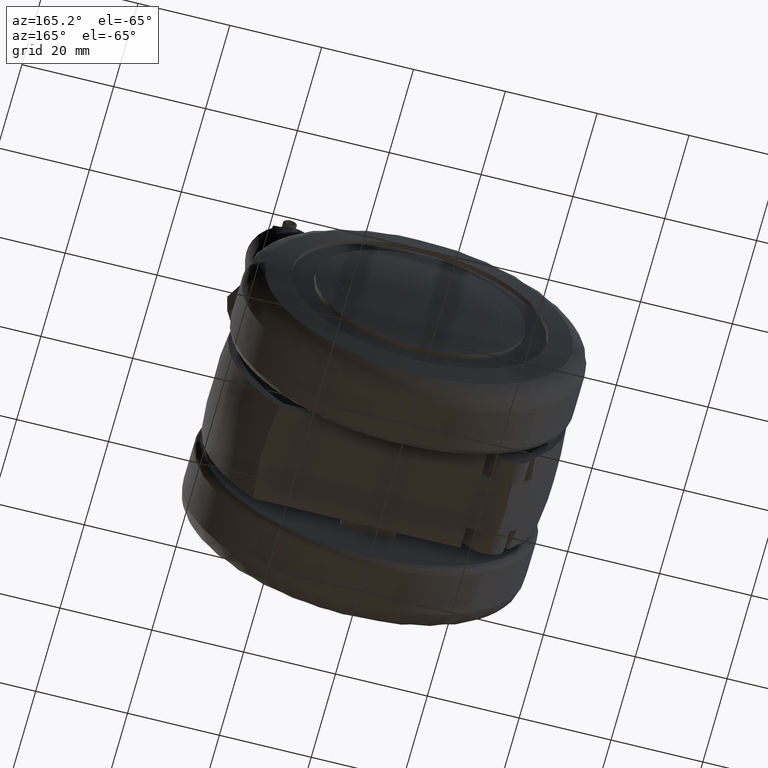
[diagram: clean part render]
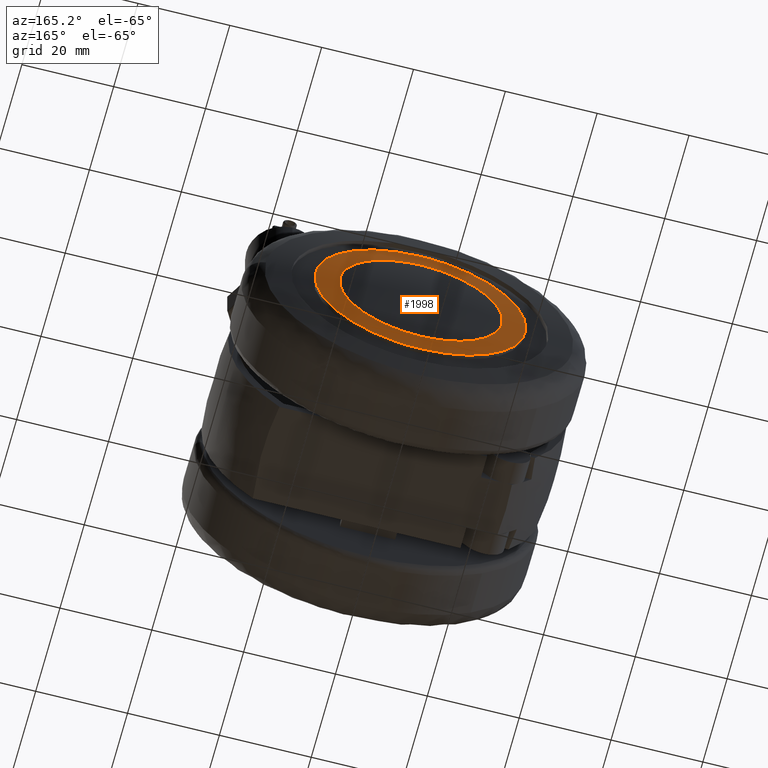
[diagram: same view with one face highlighted and labeled with its STEP entity id]
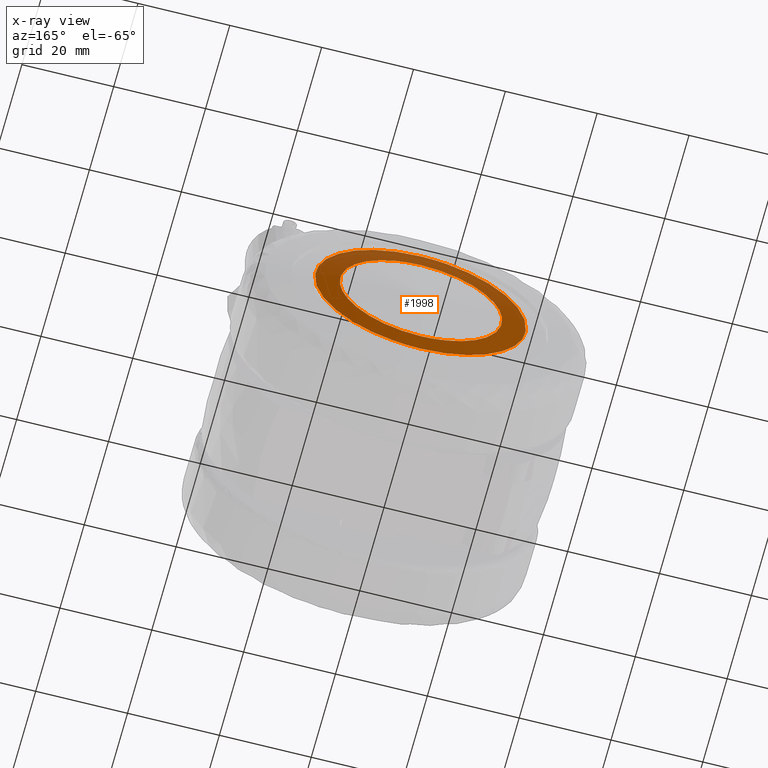
[diagram: x-ray of the same camera — body ghosted, the highlighted face saturated]
A machine part, auxiliary view. The second image highlights one B-rep face of the part: STEP entity #1998.
The next image is the same camera in x-ray: the body ghosted, the highlighted face saturated — about 0% of this face is hidden behind the body in this view.
In plain terms, the highlighted face is a freeform B-spline surface patch.
Its self-contained STEP definition (entity closure, byte-faithful):
#79=CARTESIAN_POINT('',(-17.645437166778319,30.500000387833399,1.388721423921065));
#80=VERTEX_POINT('',#79);
#86=CARTESIAN_POINT('',(0.0,30.500000387833399,17.700000000000010));
#87=VERTEX_POINT('',#86);
#88=CARTESIAN_POINT('',(0.0,30.500000387833399,17.700000000000010));
#89=CARTESIAN_POINT('',(-16.361715953410926,30.500000387833392,17.700000000000010));
#90=CARTESIAN_POINT('',(-17.645437166778315,30.500000387833389,1.388721423921064));
#98=(BOUNDED_CURVE()B_SPLINE_CURVE(2,(#88,#89,#90),.UNSPECIFIED.,.F.,.U.)B_SPLINE_CURVE_WITH_KNOTS((3,3),(0.0,0.236331345034564),.UNSPECIFIED.)CURVE()GEOMETRIC_REPRESENTATION_ITEM()RATIONAL_B_SPLINE_CURVE((1.0,0.723120606585256,0.969723448834997))REPRESENTATION_ITEM(''));
#99=EDGE_CURVE('',#87,#80,#98,.T.);
#101=CARTESIAN_POINT('',(17.645437166778319,30.500000387833399,-1.388721423921044));
#102=VERTEX_POINT('',#101);
#103=CARTESIAN_POINT('',(17.645437166778311,30.500000387833399,-1.388721423921044));
#104=CARTESIAN_POINT('',(17.699999999999999,30.500000387833399,-0.695432598199861));
#105=CARTESIAN_POINT('',(17.699999999999999,30.500000387833399,1.120515E-014));
#106=CARTESIAN_POINT('',(17.699999999999999,30.500000387833396,17.700000000000014));
#107=CARTESIAN_POINT('',(0.0,30.500000387833399,17.700000000000010));
#115=(BOUNDED_CURVE()B_SPLINE_CURVE(2,(#103,#104,#105,#106,#107),.UNSPECIFIED.,.F.,.U.)B_SPLINE_CURVE_WITH_KNOTS((3,2,3),(0.736331345034564,0.750000000000000,1.0),.UNSPECIFIED.)CURVE()GEOMETRIC_REPRESENTATION_ITEM()RATIONAL_B_SPLINE_CURVE((0.969723448834997,0.983986174601292,1.0,0.707106781186547,1.0))REPRESENTATION_ITEM(''));
#116=EDGE_CURVE('',#102,#87,#115,.T.);
#192=CARTESIAN_POINT('',(0.0,30.500000387833399,-17.699999999999989));
#193=VERTEX_POINT('',#192);
#194=CARTESIAN_POINT('',(0.0,30.500000387833399,-17.699999999999989));
#195=CARTESIAN_POINT('',(16.361715953410926,30.500000387833396,-17.699999999999999));
#196=CARTESIAN_POINT('',(17.645437166778311,30.500000387833399,-1.388721423921044));
#204=(BOUNDED_CURVE()B_SPLINE_CURVE(2,(#194,#195,#196),.UNSPECIFIED.,.F.,.U.)B_SPLINE_CURVE_WITH_KNOTS((3,3),(0.500000000000000,0.736331345034564),.UNSPECIFIED.)CURVE()GEOMETRIC_REPRESENTATION_ITEM()RATIONAL_B_SPLINE_CURVE((1.0,0.723120606585255,0.969723448834997))REPRESENTATION_ITEM(''));
#205=EDGE_CURVE('',#193,#102,#204,.T.);
#207=CARTESIAN_POINT('',(-17.645437166778315,30.500000387833389,1.388721423921064));
#208=CARTESIAN_POINT('',(-17.700000000000003,30.500000387833403,0.695432598199887));
#209=CARTESIAN_POINT('',(-17.699999999999999,30.500000387833399,1.120515E-014));
#210=CARTESIAN_POINT('',(-17.699999999999999,30.500000387833396,-17.699999999999985));
#211=CARTESIAN_POINT('',(0.0,30.500000387833399,-17.699999999999989));
#219=(BOUNDED_CURVE()B_SPLINE_CURVE(2,(#207,#208,#209,#210,#211),.UNSPECIFIED.,.F.,.U.)B_SPLINE_CURVE_WITH_KNOTS((3,2,3),(0.236331345034564,0.250000000000000,0.500000000000000),.UNSPECIFIED.)CURVE()GEOMETRIC_REPRESENTATION_ITEM()RATIONAL_B_SPLINE_CURVE((0.969723448834997,0.983986174601292,1.0,0.707106781186547,1.0))REPRESENTATION_ITEM(''));
#220=EDGE_CURVE('',#80,#193,#219,.T.);
#443=CARTESIAN_POINT('',(22.929100245575949,30.067119747285300,1.804539256410989));
#444=VERTEX_POINT('',#443);
#450=CARTESIAN_POINT('',(0.0,30.067119747285300,23.000000000000011));
#451=VERTEX_POINT('',#450);
#452=CARTESIAN_POINT('',(0.0,30.067119747285300,23.000000000000011));
#453=CARTESIAN_POINT('',(21.260999859617566,30.067119747285307,23.000000000000007));
#454=CARTESIAN_POINT('',(22.929100245575960,30.067119747285300,1.804539256410989));
#462=(BOUNDED_CURVE()B_SPLINE_CURVE(2,(#452,#453,#454),.UNSPECIFIED.,.F.,.U.)B_SPLINE_CURVE_WITH_KNOTS((3,3),(0.0,0.236331449749760),.UNSPECIFIED.)CURVE()GEOMETRIC_REPRESENTATION_ITEM()RATIONAL_B_SPLINE_CURVE((1.0,0.723120483903772,0.969723667367813))REPRESENTATION_ITEM(''));
#463=EDGE_CURVE('',#451,#444,#462,.T.);
#465=CARTESIAN_POINT('',(-22.929100245575949,30.067119747285300,-1.804539256410986));
#466=VERTEX_POINT('',#465);
#467=CARTESIAN_POINT('',(-22.929100245575956,30.067119747285293,-1.804539256410987));
#468=CARTESIAN_POINT('',(-22.999999999999993,30.067119747285300,-0.903662442232541));
#469=CARTESIAN_POINT('',(-23.0,30.067119747285300,1.104612E-014));
#470=CARTESIAN_POINT('',(-22.999999999999993,30.067119747285300,23.000000000000007));
#471=CARTESIAN_POINT('',(0.0,30.067119747285300,23.000000000000011));
#479=(BOUNDED_CURVE()B_SPLINE_CURVE(2,(#467,#468,#469,#470,#471),.UNSPECIFIED.,.F.,.U.)B_SPLINE_CURVE_WITH_KNOTS((3,2,3),(0.736331449749760,0.750000000000000,1.0),.UNSPECIFIED.)CURVE()GEOMETRIC_REPRESENTATION_ITEM()RATIONAL_B_SPLINE_CURVE((0.969723667367812,0.983986297282775,1.0,0.707106781186548,1.0))REPRESENTATION_ITEM(''));
#480=EDGE_CURVE('',#466,#451,#479,.T.);
#556=CARTESIAN_POINT('',(0.0,30.067119747285300,-22.999999999999989));
#557=VERTEX_POINT('',#556);
#558=CARTESIAN_POINT('',(0.0,30.067119747285300,-22.999999999999989));
#559=CARTESIAN_POINT('',(-21.260999859617545,30.067119747285297,-22.999999999999986));
#560=CARTESIAN_POINT('',(-22.929100245575956,30.067119747285293,-1.804539256410987));
#568=(BOUNDED_CURVE()B_SPLINE_CURVE(2,(#558,#559,#560),.UNSPECIFIED.,.F.,.U.)B_SPLINE_CURVE_WITH_KNOTS((3,3),(0.500000000000000,0.736331449749760),.UNSPECIFIED.)CURVE()GEOMETRIC_REPRESENTATION_ITEM()RATIONAL_B_SPLINE_CURVE((1.0,0.723120483903773,0.969723667367812))REPRESENTATION_ITEM(''));
#569=EDGE_CURVE('',#557,#466,#568,.T.);
#571=CARTESIAN_POINT('',(22.929100245575960,30.067119747285300,1.804539256410989));
#572=CARTESIAN_POINT('',(23.000000000000004,30.067119747285297,0.903662442232552));
#573=CARTESIAN_POINT('',(23.0,30.067119747285300,1.104612E-014));
#574=CARTESIAN_POINT('',(22.999999999999993,30.067119747285300,-22.999999999999993));
#575=CARTESIAN_POINT('',(0.0,30.067119747285300,-22.999999999999989));
#583=(BOUNDED_CURVE()B_SPLINE_CURVE(2,(#571,#572,#573,#574,#575),.UNSPECIFIED.,.F.,.U.)B_SPLINE_CURVE_WITH_KNOTS((3,2,3),(0.236331449749760,0.250000000000000,0.500000000000000),.UNSPECIFIED.)CURVE()GEOMETRIC_REPRESENTATION_ITEM()RATIONAL_B_SPLINE_CURVE((0.969723667367813,0.983986297282775,1.0,0.707106781186548,1.0))REPRESENTATION_ITEM(''));
#584=EDGE_CURVE('',#444,#557,#583,.T.);
#1962=CARTESIAN_POINT('',(-25.214812911085698,28.570439018267514,25.221812284360379));
#1963=CARTESIAN_POINT('',(-12.639716342441856,29.845271349562946,25.286449995944416));
#1964=CARTESIAN_POINT('',(12.639716452849083,29.845271349562946,25.286449995944416));
#1965=CARTESIAN_POINT('',(25.214813130209610,28.570438996053255,25.221812283234037));
#1966=CARTESIAN_POINT('',(-25.279468657439871,29.845981023628472,12.643242989243078));
#1967=CARTESIAN_POINT('',(-12.672210339301159,31.127367999999880,12.675728014831540));
#1968=CARTESIAN_POINT('',(12.672210449992230,31.127367999999880,12.675728014831540));
#1969=CARTESIAN_POINT('',(25.279468877122792,29.845981001300181,12.643242988677025));
#1970=CARTESIAN_POINT('',(-25.279468657439871,29.845981023628472,-12.643243362604240));
#1971=CARTESIAN_POINT('',(-12.672210339301159,31.127367999999880,-12.675728389152001));
#1972=CARTESIAN_POINT('',(12.672210449992230,31.127367999999880,-12.675728389152001));
#1973=CARTESIAN_POINT('',(25.279468877122792,29.845981001300181,-12.643243362038197));
#1974=CARTESIAN_POINT('',(-25.214812907276805,28.570438943125399,-25.221813025362916));
#1975=CARTESIAN_POINT('',(-12.639716340527652,29.845271274035237,-25.286450738836212));
#1976=CARTESIAN_POINT('',(12.639716450934889,29.845271274035237,-25.286450738836212));
#1977=CARTESIAN_POINT('',(25.214813126400749,28.570438920911183,-25.221813024236614));
#1985=(BOUNDED_SURFACE()B_SPLINE_SURFACE(2,2,((#1962,#1966,#1970,#1974),(#1963,#1967,#1971,#1975),(#1964,#1968,#1972,#1976),(#1965,#1969,#1973,#1977)),.UNSPECIFIED.,.F.,.F.,.U.)B_SPLINE_SURFACE_WITH_KNOTS((3,1,3),(3,1,3),(86.663106808471682,111.362487685095000,136.061868777465800),(86.656250513839723,111.362487685095000,136.068725585937500),.UNSPECIFIED.)GEOMETRIC_REPRESENTATION_ITEM()RATIONAL_B_SPLINE_SURFACE(((1.005140143929431,1.002569358638136,1.002569358638136,1.005140144081265),(1.002570785291296,1.0,1.0,1.002570785443129),(1.002570785291296,1.0,1.0,1.002570785443129),(1.005140143974318,1.002569358683022,1.002569358683022,1.005140144126151)))REPRESENTATION_ITEM('')SURFACE());
#1986=ORIENTED_EDGE('',*,*,#463,.T.);
#1987=ORIENTED_EDGE('',*,*,#584,.T.);
#1988=ORIENTED_EDGE('',*,*,#569,.T.);
#1989=ORIENTED_EDGE('',*,*,#480,.T.);
#1990=EDGE_LOOP('',(#1986,#1987,#1988,#1989));
#1991=FACE_OUTER_BOUND('',#1990,.T.);
#1992=ORIENTED_EDGE('',*,*,#205,.T.);
#1993=ORIENTED_EDGE('',*,*,#116,.T.);
#1994=ORIENTED_EDGE('',*,*,#99,.T.);
#1995=ORIENTED_EDGE('',*,*,#220,.T.);
#1996=EDGE_LOOP('',(#1992,#1993,#1994,#1995));
#1997=FACE_BOUND('',#1996,.T.);
#1998=ADVANCED_FACE('',(#1991,#1997),#1985,.T.);